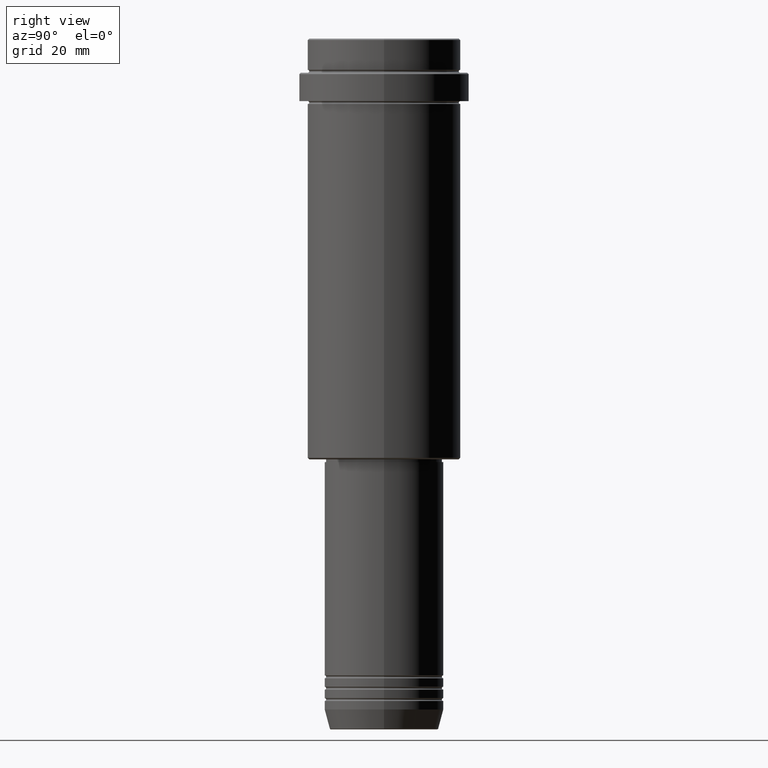
[diagram: clean part render]
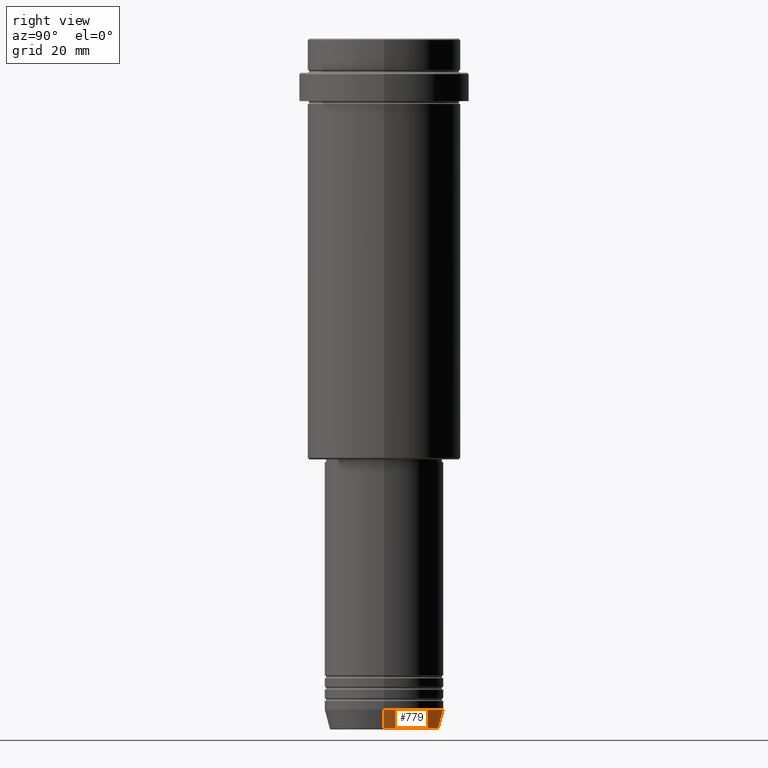
[diagram: same view with one face highlighted and labeled with its STEP entity id]
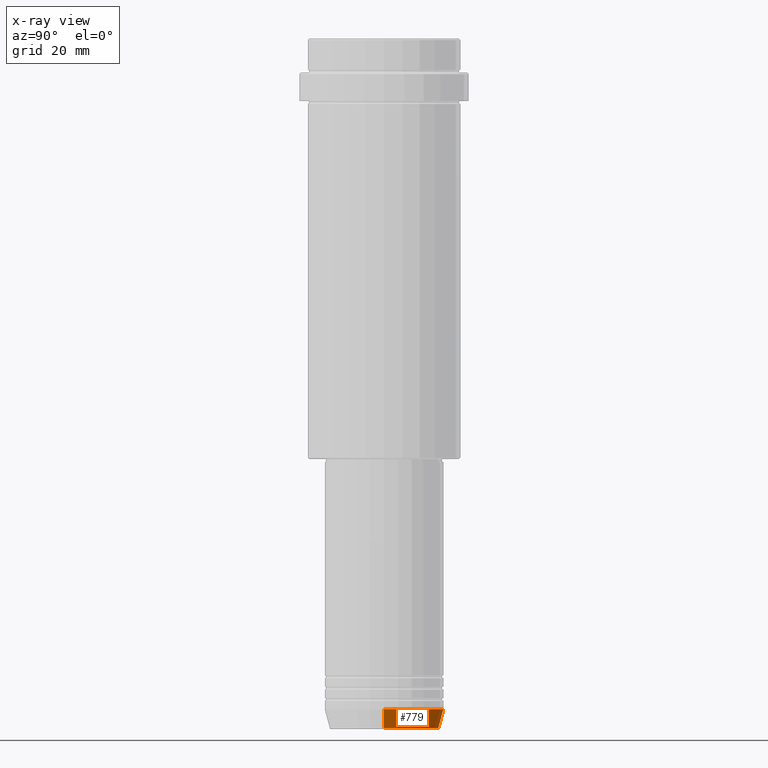
[diagram: x-ray of the same camera — body ghosted, the highlighted face saturated]
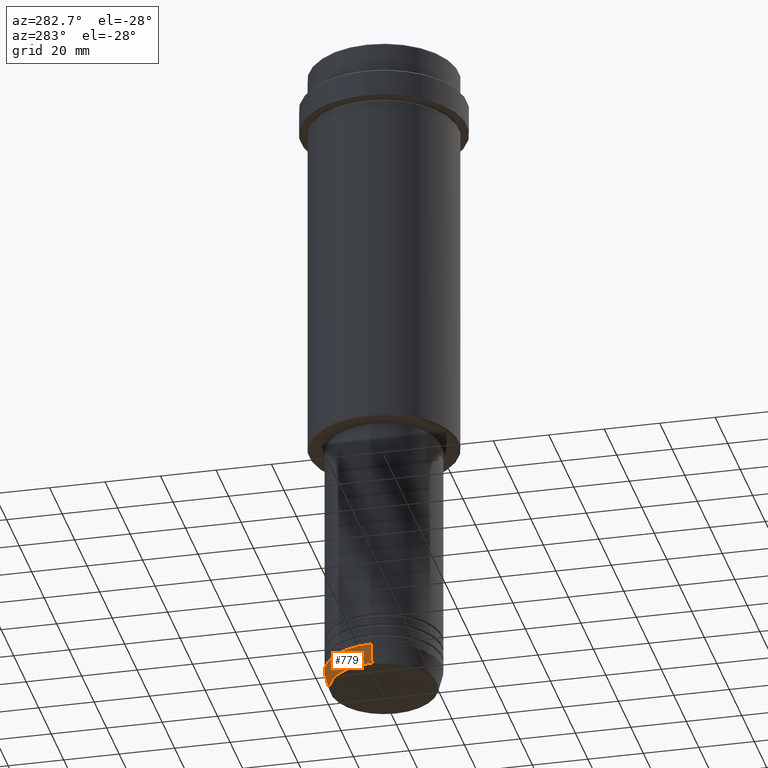
[diagram: same view with one face highlighted and labeled with its STEP entity id]
A machine part, right view. The second image highlights one B-rep face of the part: STEP entity #779.
The next image is the same camera in x-ray: the body ghosted, the highlighted face saturated — about 0% of this face is hidden behind the body in this view.
A second angle (auxiliary view) of the same face is appended — the face is thin or edge-on in the first view.
In plain terms, the highlighted conical surface has half-angle 15 deg.
Its self-contained STEP definition (entity closure, byte-faithful):
#11 = CIRCLE ( 'NONE', #804, 21.00000000000000000 ) ;
#65 = CARTESIAN_POINT ( 'NONE',  ( 0.000000000000000000, 0.000000000000000000, -242.6294095225512990 ) ) ;
#84 = CIRCLE ( 'NONE', #1084, 19.22365507213718416 ) ;
#176 = VERTEX_POINT ( 'NONE', #1004 ) ;
#179 = EDGE_CURVE ( 'NONE', #1120, #1187, #1020, .T. ) ;
#226 = EDGE_LOOP ( 'NONE', ( #1200, #1384, #930, #298 ) ) ;
#255 = EDGE_CURVE ( 'NONE', #1187, #1386, #11, .T. ) ;
#272 = EDGE_CURVE ( 'NONE', #1120, #176, #84, .T. ) ;
#298 = ORIENTED_EDGE ( 'NONE', *, *, #179, .F. ) ;
#391 = DIRECTION ( 'NONE',  ( -0.000000000000000000, -0.000000000000000000, 1.000000000000000000 ) ) ;
#395 = CARTESIAN_POINT ( 'NONE',  ( -21.00000000000000000, 2.571758278209441661E-15, -236.0000000000000284 ) ) ;
#473 = DIRECTION ( 'NONE',  ( 0.2588190451025213501, 0.000000000000000000, 0.9659258262890680902 ) ) ;
#597 = CARTESIAN_POINT ( 'NONE',  ( 0.000000000000000000, 0.000000000000000000, -236.0000000000000284 ) ) ;
#612 = DIRECTION ( 'NONE',  ( -0.2588190451025213501, 3.169619151431772337E-17, 0.9659258262890680902 ) ) ;
#679 = CARTESIAN_POINT ( 'NONE',  ( 21.00000000000000000, 0.000000000000000000, -236.0000000000000284 ) ) ;
#711 = DIRECTION ( 'NONE',  ( 1.000000000000000000, 0.000000000000000000, 0.000000000000000000 ) ) ;
#716 = DIRECTION ( 'NONE',  ( -0.000000000000000000, -0.000000000000000000, 1.000000000000000000 ) ) ;
#721 = DIRECTION ( 'NONE',  ( 1.000000000000000000, 0.000000000000000000, 0.000000000000000000 ) ) ;
#736 = FACE_OUTER_BOUND ( 'NONE', #226, .T. ) ;
#769 = CONICAL_SURFACE ( 'NONE', #940, 21.00000000000000000, 0.2617993877991500740 ) ;
#779 = ADVANCED_FACE ( 'NONE', ( #736 ), #769, .T. ) ;
#804 = AXIS2_PLACEMENT_3D ( 'NONE', #597, #1249, #721 ) ;
#930 = ORIENTED_EDGE ( 'NONE', *, *, #255, .F. ) ;
#940 = AXIS2_PLACEMENT_3D ( 'NONE', #1383, #716, #1044 ) ;
#993 = CARTESIAN_POINT ( 'NONE',  ( 19.22365507213718416, 0.000000000000000000, -242.6294095225512990 ) ) ;
#1004 = CARTESIAN_POINT ( 'NONE',  ( -19.22365507213718416, 2.462988521705000261E-15, -242.6294095225512990 ) ) ;
#1020 = LINE ( 'NONE', #679, #1055 ) ;
#1024 = LINE ( 'NONE', #1252, #1056 ) ;
#1044 = DIRECTION ( 'NONE',  ( 1.000000000000000000, 0.000000000000000000, 0.000000000000000000 ) ) ;
#1055 = VECTOR ( 'NONE', #473, 1000.000000000000000 ) ;
#1056 = VECTOR ( 'NONE', #612, 1000.000000000000000 ) ;
#1084 = AXIS2_PLACEMENT_3D ( 'NONE', #65, #391, #711 ) ;
#1120 = VERTEX_POINT ( 'NONE', #993 ) ;
#1124 = CARTESIAN_POINT ( 'NONE',  ( 21.00000000000000000, 0.000000000000000000, -236.0000000000000284 ) ) ;
#1187 = VERTEX_POINT ( 'NONE', #1124 ) ;
#1200 = ORIENTED_EDGE ( 'NONE', *, *, #272, .T. ) ;
#1249 = DIRECTION ( 'NONE',  ( -0.000000000000000000, -0.000000000000000000, 1.000000000000000000 ) ) ;
#1252 = CARTESIAN_POINT ( 'NONE',  ( -21.00000000000000000, 2.571758278209441661E-15, -236.0000000000000284 ) ) ;
#1295 = EDGE_CURVE ( 'NONE', #176, #1386, #1024, .T. ) ;
#1383 = CARTESIAN_POINT ( 'NONE',  ( 0.000000000000000000, 0.000000000000000000, -236.0000000000000284 ) ) ;
#1384 = ORIENTED_EDGE ( 'NONE', *, *, #1295, .T. ) ;
#1386 = VERTEX_POINT ( 'NONE', #395 ) ;